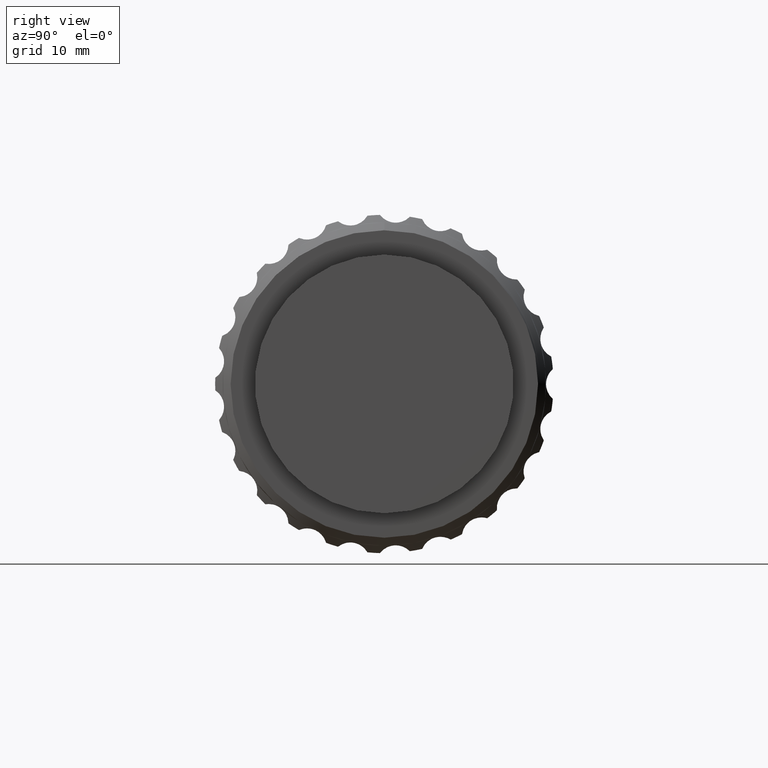
[diagram: clean part render]
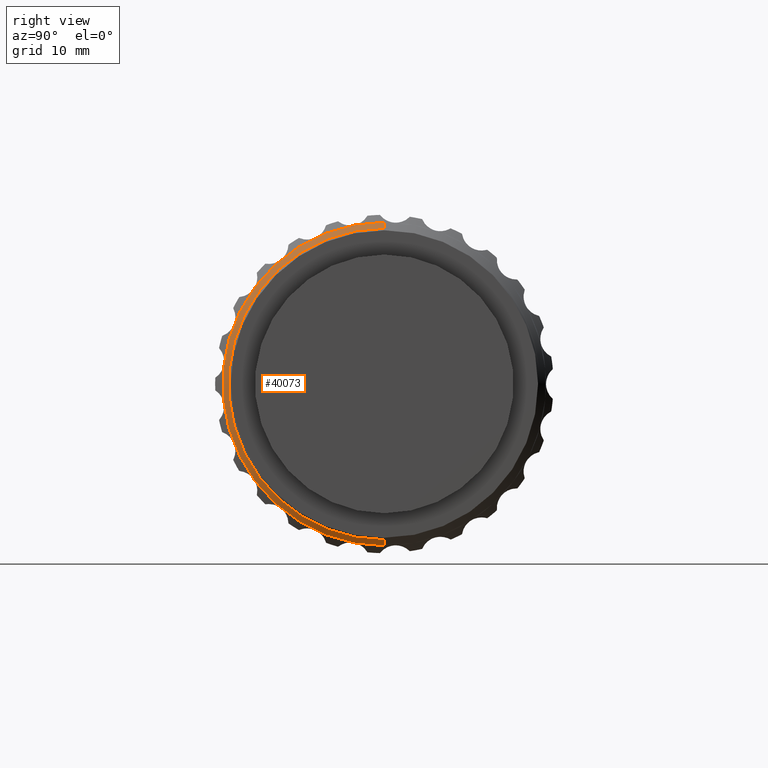
[diagram: same view with one face highlighted and labeled with its STEP entity id]
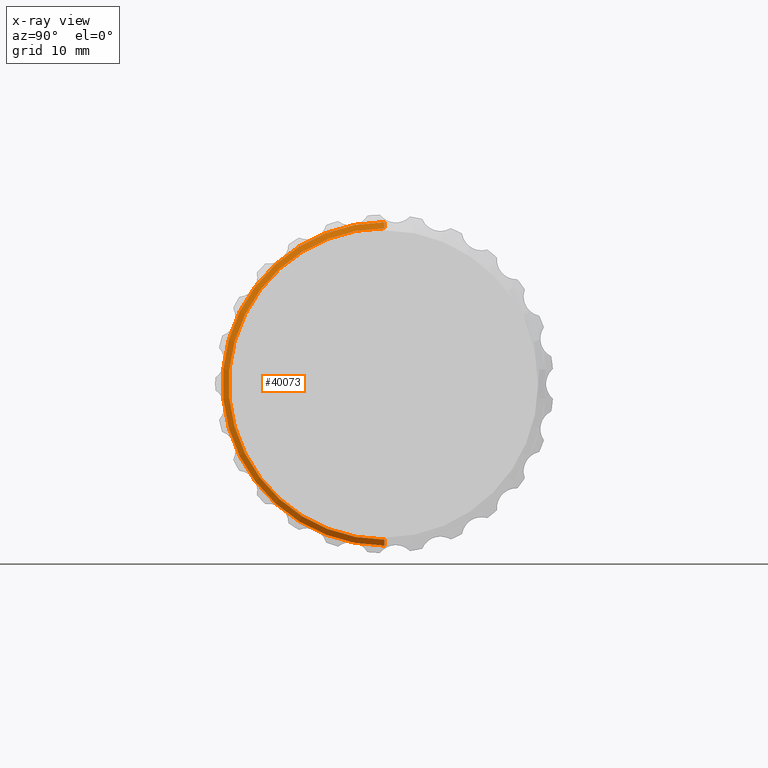
[diagram: x-ray of the same camera — body ghosted, the highlighted face saturated]
A machine part, right view. The second image highlights one B-rep face of the part: STEP entity #40073.
The next image is the same camera in x-ray: the body ghosted, the highlighted face saturated — about 0% of this face is hidden behind the body in this view.
In plain terms, the highlighted conical surface has half-angle 45 deg.
Its self-contained STEP definition (entity closure, byte-faithful):
#194 = AXIS2_PLACEMENT_3D ( 'NONE', #6955, #23619, #6279 ) ;
#834 = DIRECTION ( 'NONE',  ( -0.7071067811865474617, 0.000000000000000000, 0.7071067811865474617 ) ) ;
#2522 = CARTESIAN_POINT ( 'NONE',  ( 48.35000000000000142, 0.000000000000000000, 0.000000000000000000 ) ) ;
#3130 = CONICAL_SURFACE ( 'NONE', #28655, 16.25000000000000000, 0.7853981633974482790 ) ;
#5399 = EDGE_LOOP ( 'NONE', ( #11773, #21204, #26132, #36556 ) ) ;
#6229 = FACE_OUTER_BOUND ( 'NONE', #5399, .T. ) ;
#6279 = DIRECTION ( 'NONE',  ( 0.000000000000000000, 0.000000000000000000, 1.000000000000000000 ) ) ;
#6955 = CARTESIAN_POINT ( 'NONE',  ( 48.95000000000000995, 0.000000000000000000, 0.000000000000000000 ) ) ;
#7703 = LINE ( 'NONE', #11125, #32963 ) ;
#9383 = DIRECTION ( 'NONE',  ( -1.000000000000000000, -0.000000000000000000, -0.000000000000000000 ) ) ;
#9597 = CARTESIAN_POINT ( 'NONE',  ( 48.95000000000000995, 1.916572240665607987E-15, -15.65000000000000036 ) ) ;
#10534 = LINE ( 'NONE', #28098, #18426 ) ;
#11125 = CARTESIAN_POINT ( 'NONE',  ( 48.35000000000000142, 0.000000000000000000, 16.25000000000000000 ) ) ;
#11773 = ORIENTED_EDGE ( 'NONE', *, *, #37342, .F. ) ;
#13188 = CARTESIAN_POINT ( 'NONE',  ( 48.35000000000000142, 0.000000000000000000, 16.25000000000000000 ) ) ;
#14553 = CARTESIAN_POINT ( 'NONE',  ( 48.95000000000000995, 0.000000000000000000, 15.65000000000000036 ) ) ;
#18426 = VECTOR ( 'NONE', #25124, 1000.000000000000114 ) ;
#20593 = DIRECTION ( 'NONE',  ( 0.000000000000000000, 0.000000000000000000, 1.000000000000000000 ) ) ;
#21204 = ORIENTED_EDGE ( 'NONE', *, *, #39876, .T. ) ;
#22039 = CIRCLE ( 'NONE', #30044, 16.25000000000000000 ) ;
#23619 = DIRECTION ( 'NONE',  ( -1.000000000000000000, -0.000000000000000000, -0.000000000000000000 ) ) ;
#25124 = DIRECTION ( 'NONE',  ( -0.7071067811865474617, 8.659560562354932858E-17, -0.7071067811865474617 ) ) ;
#26132 = ORIENTED_EDGE ( 'NONE', *, *, #32302, .T. ) ;
#27227 = DIRECTION ( 'NONE',  ( -1.000000000000000000, -0.000000000000000000, -0.000000000000000000 ) ) ;
#27282 = VERTEX_POINT ( 'NONE', #9597 ) ;
#28098 = CARTESIAN_POINT ( 'NONE',  ( 48.35000000000000142, 1.990051048614449313E-15, -16.25000000000000000 ) ) ;
#28118 = VERTEX_POINT ( 'NONE', #14553 ) ;
#28655 = AXIS2_PLACEMENT_3D ( 'NONE', #30886, #27227, #20593 ) ;
#30044 = AXIS2_PLACEMENT_3D ( 'NONE', #2522, #9383, #30607 ) ;
#30607 = DIRECTION ( 'NONE',  ( 0.000000000000000000, 0.000000000000000000, 1.000000000000000000 ) ) ;
#30886 = CARTESIAN_POINT ( 'NONE',  ( 48.35000000000000142, 0.000000000000000000, 0.000000000000000000 ) ) ;
#31710 = CARTESIAN_POINT ( 'NONE',  ( 48.35000000000000142, 1.990051048614449313E-15, -16.25000000000000000 ) ) ;
#32302 = EDGE_CURVE ( 'NONE', #28118, #33379, #7703, .T. ) ;
#32963 = VECTOR ( 'NONE', #834, 1000.000000000000114 ) ;
#33379 = VERTEX_POINT ( 'NONE', #13188 ) ;
#35374 = EDGE_CURVE ( 'NONE', #38855, #33379, #22039, .T. ) ;
#36556 = ORIENTED_EDGE ( 'NONE', *, *, #35374, .F. ) ;
#37342 = EDGE_CURVE ( 'NONE', #27282, #38855, #10534, .T. ) ;
#38855 = VERTEX_POINT ( 'NONE', #31710 ) ;
#39584 = CIRCLE ( 'NONE', #194, 15.65000000000000036 ) ;
#39876 = EDGE_CURVE ( 'NONE', #27282, #28118, #39584, .T. ) ;
#40073 = ADVANCED_FACE ( 'NONE', ( #6229 ), #3130, .T. ) ;